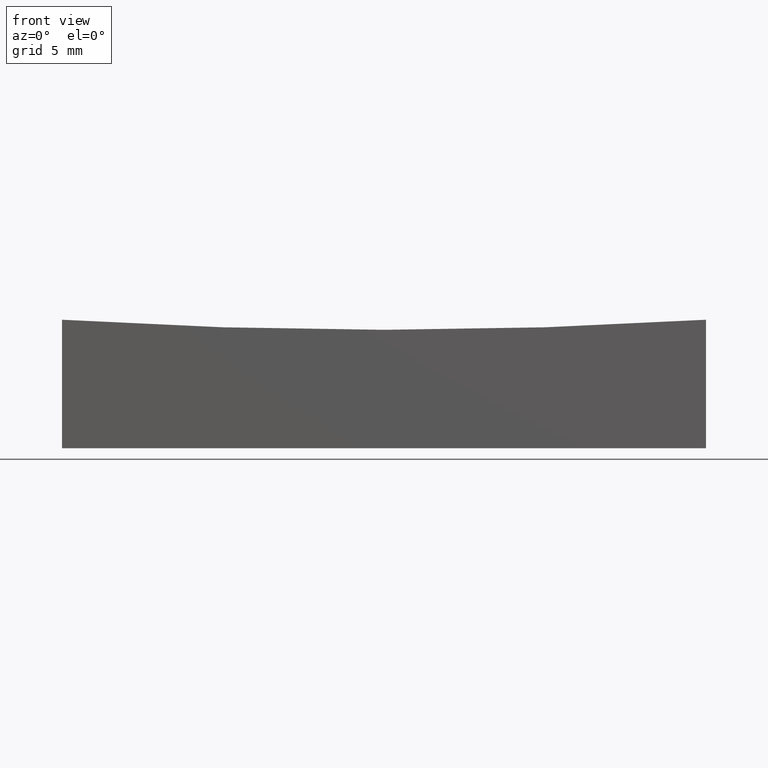
[diagram: clean part render]
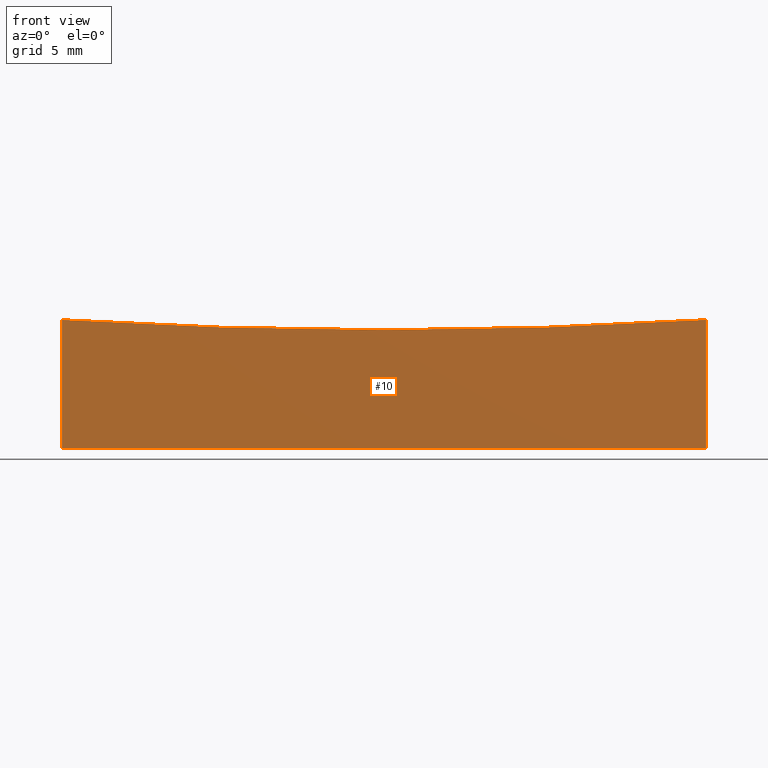
[diagram: same view with one face highlighted and labeled with its STEP entity id]
A machine part, front view. The second image highlights one B-rep face of the part: STEP entity #10.
In plain terms, the highlighted planar face has unit normal (0, 1, 0).
Its self-contained STEP definition (entity closure, byte-faithful):
#1 = CARTESIAN_POINT ( 'NONE',  ( -24.99999999999998934, -12.49999999999999645, 9.977757512190821743 ) ) ;
#2 = VERTEX_POINT ( 'NONE', #1 ) ;
#6 = FACE_OUTER_BOUND ( 'NONE', #196, .T. ) ;
#7 = AXIS2_PLACEMENT_3D ( 'NONE', #30, #205, #47 ) ;
#10 = ADVANCED_FACE ( 'NONE', ( #6 ), #21, .F. ) ;
#17 = CIRCLE ( 'NONE', #7, 399.8046397929868476 ) ;
#20 = VERTEX_POINT ( 'NONE', #219 ) ;
#21 = PLANE ( 'NONE',  #190 ) ;
#26 = EDGE_CURVE ( 'NONE', #215, #217, #197, .T. ) ;
#28 = LINE ( 'NONE', #185, #241 ) ;
#30 = CARTESIAN_POINT ( 'NONE',  ( 0.000000000000000000, -12.49999999999999645, 409.0000000000000568 ) ) ;
#35 = DIRECTION ( 'NONE',  ( -0.000000000000000000, -0.000000000000000000, -1.000000000000000000 ) ) ;
#40 = DIRECTION ( 'NONE',  ( -0.000000000000000000, -0.000000000000000000, -1.000000000000000000 ) ) ;
#47 = DIRECTION ( 'NONE',  ( 1.154631945610162802E-14, 0.000000000000000000, 1.000000000000000000 ) ) ;
#54 = CARTESIAN_POINT ( 'NONE',  ( 24.99999999999999645, -12.50000000000000000, 15.00000000000000000 ) ) ;
#57 = ORIENTED_EDGE ( 'NONE', *, *, #99, .T. ) ;
#70 = ORIENTED_EDGE ( 'NONE', *, *, #236, .F. ) ;
#72 = CARTESIAN_POINT ( 'NONE',  ( -24.99999999999999645, -12.50000000000000000, 15.00000000000000000 ) ) ;
#81 = DIRECTION ( 'NONE',  ( 0.000000000000000000, 1.000000000000000000, 0.000000000000000000 ) ) ;
#96 = DIRECTION ( 'NONE',  ( 0.000000000000000000, -0.000000000000000000, 1.000000000000000000 ) ) ;
#97 = VECTOR ( 'NONE', #35, 1000.000000000000000 ) ;
#99 = EDGE_CURVE ( 'NONE', #2, #20, #119, .T. ) ;
#105 = CARTESIAN_POINT ( 'NONE',  ( -24.99999999999999645, -12.50000000000000000, 15.00000000000000000 ) ) ;
#107 = EDGE_CURVE ( 'NONE', #20, #217, #28, .T. ) ;
#111 = VECTOR ( 'NONE', #40, 1000.000000000000000 ) ;
#119 = LINE ( 'NONE', #105, #111 ) ;
#156 = ORIENTED_EDGE ( 'NONE', *, *, #107, .T. ) ;
#185 = CARTESIAN_POINT ( 'NONE',  ( -24.99999999999999645, -12.50000000000000000, 0.000000000000000000 ) ) ;
#190 = AXIS2_PLACEMENT_3D ( 'NONE', #72, #81, #96 ) ;
#196 = EDGE_LOOP ( 'NONE', ( #70, #57, #156, #230 ) ) ;
#197 = LINE ( 'NONE', #54, #97 ) ;
#200 = DIRECTION ( 'NONE',  ( 1.000000000000000000, 0.000000000000000000, 0.000000000000000000 ) ) ;
#205 = DIRECTION ( 'NONE',  ( -0.000000000000000000, -1.000000000000000000, -0.000000000000000000 ) ) ;
#209 = CARTESIAN_POINT ( 'NONE',  ( 24.99999999999999645, -12.50000000000000000, 0.000000000000000000 ) ) ;
#211 = CARTESIAN_POINT ( 'NONE',  ( 24.99999999999999645, -12.50000000000000000, 9.977757512190766676 ) ) ;
#215 = VERTEX_POINT ( 'NONE', #211 ) ;
#217 = VERTEX_POINT ( 'NONE', #209 ) ;
#219 = CARTESIAN_POINT ( 'NONE',  ( -24.99999999999999645, -12.50000000000000000, 0.000000000000000000 ) ) ;
#230 = ORIENTED_EDGE ( 'NONE', *, *, #26, .F. ) ;
#236 = EDGE_CURVE ( 'NONE', #2, #215, #17, .T. ) ;
#241 = VECTOR ( 'NONE', #200, 1000.000000000000000 ) ;